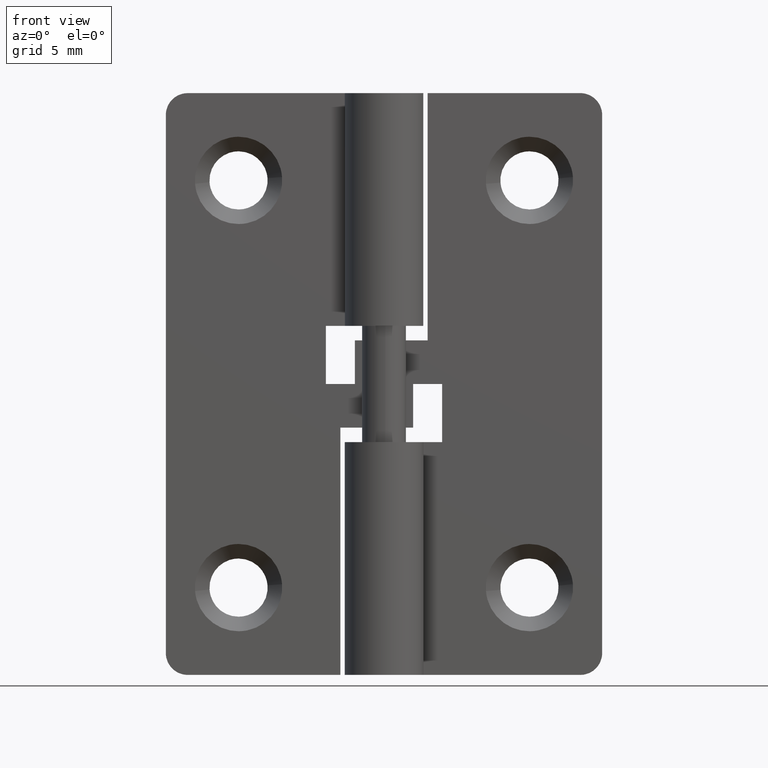
[diagram: clean part render]
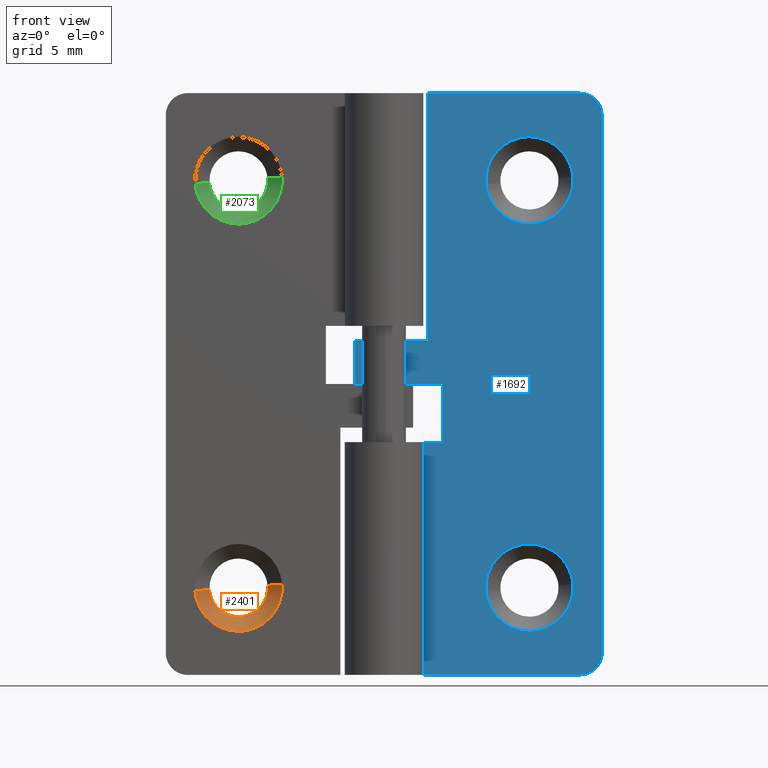
[diagram: same view with three faces highlighted in distinct colors, each labeled with its STEP entity id]
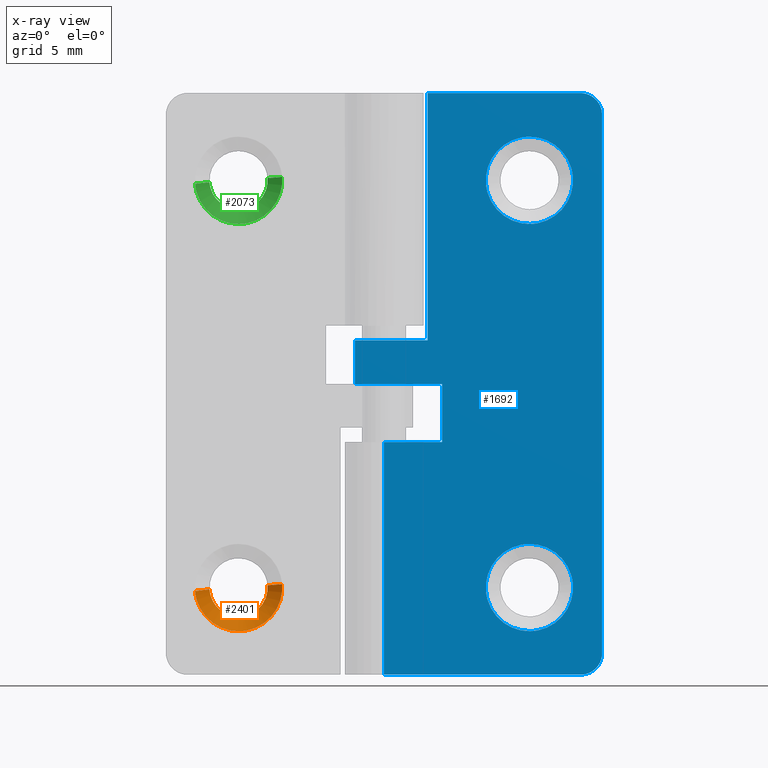
[diagram: x-ray of the same camera — body ghosted, the three highlighted faces saturated]
A machine part, front view with three faces highlighted in distinct colors.
The next image is the same camera in x-ray (body ghosted, the three faces saturated) — at least one of them is partly hidden behind the body in this view.
Their STEP definitions:

[orange] entity #2401 — the highlighted face is a freeform B-spline surface patch.
#2092=CARTESIAN_POINT('',(-8.013061613129381,2.500000000000000,5.771798670512149));
#2093=VERTEX_POINT('',#2092);
#2094=CARTESIAN_POINT('',(-10.0,2.500000000000000,3.999999999999901));
#2095=VERTEX_POINT('',#2094);
#2096=CARTESIAN_POINT('',(-8.013061613129381,2.500000000000000,5.771798670512149));
#2097=CARTESIAN_POINT('',(-8.216553988574878,2.500000000000000,3.999999999999901));
#2098=CARTESIAN_POINT('',(-10.0,2.500000000000000,3.999999999999901));
#2106=(BOUNDED_CURVE()B_SPLINE_CURVE(2,(#2096,#2097,#2098),.UNSPECIFIED.,.F.,.U.)B_SPLINE_CURVE_WITH_KNOTS((3,3),(0.269767755877807,0.500000000000000),.UNSPECIFIED.)CURVE()GEOMETRIC_REPRESENTATION_ITEM()RATIONAL_B_SPLINE_CURVE((0.957343736458301,0.730266147777625,1.0))REPRESENTATION_ITEM(''));
#2107=EDGE_CURVE('',#2093,#2095,#2106,.T.);
#2146=CARTESIAN_POINT('',(-11.996269607212870,2.499999999999739,5.877903090464221));
#2147=VERTEX_POINT('',#2146);
#2153=CARTESIAN_POINT('',(-10.0,2.500000000000000,3.999999999999901));
#2154=CARTESIAN_POINT('',(-11.881412293889690,2.500000000000000,3.999999999999901));
#2155=CARTESIAN_POINT('',(-11.996269607212861,2.499999999999739,5.877903090464221));
#2163=(BOUNDED_CURVE()B_SPLINE_CURVE(2,(#2153,#2154,#2155),.UNSPECIFIED.,.F.,.U.)B_SPLINE_CURVE_WITH_KNOTS((3,3),(0.500000000000000,0.739332976895577),.UNSPECIFIED.)CURVE()GEOMETRIC_REPRESENTATION_ITEM()RATIONAL_B_SPLINE_CURVE((1.0,0.719603976115395,0.976072073078677))REPRESENTATION_ITEM(''));
#2164=EDGE_CURVE('',#2095,#2147,#2163,.T.);
#2191=CARTESIAN_POINT('',(-8.006165332516021,2.499999999955601,6.156918191796287));
#2192=VERTEX_POINT('',#2191);
#2193=CARTESIAN_POINT('',(-8.006165332516021,2.499999999955600,6.156918191796287));
#2194=CARTESIAN_POINT('',(-8.0,2.500000000000000,6.078580214354018));
#2195=CARTESIAN_POINT('',(-8.0,2.500000000000000,5.999999999999901));
#2196=CARTESIAN_POINT('',(-8.0,2.500000000000000,5.885525529942215));
#2197=CARTESIAN_POINT('',(-8.013061613129381,2.500000000000000,5.771798670512149));
#2205=(BOUNDED_CURVE()B_SPLINE_CURVE(2,(#2193,#2194,#2195,#2196,#2197),.UNSPECIFIED.,.F.,.U.)B_SPLINE_CURVE_WITH_KNOTS((3,2,3),(0.236331300574782,0.250000000000000,0.269767755877807),.UNSPECIFIED.)CURVE()GEOMETRIC_REPRESENTATION_ITEM()RATIONAL_B_SPLINE_CURVE((0.969723356050805,0.983986122513417,1.0,0.976840633408922,0.957343736458301))REPRESENTATION_ITEM(''));
#2206=EDGE_CURVE('',#2192,#2093,#2205,.T.);
#2294=CARTESIAN_POINT('',(-7.009247998788410,1.499999999969401,6.235377287418338));
#2295=VERTEX_POINT('',#2294);
#2296=CARTESIAN_POINT('',(-8.006165332516021,2.499999999955601,6.156918191796287));
#2297=CARTESIAN_POINT('',(-7.009247998788410,1.499999999969401,6.235377287418338));
#2298=QUASI_UNIFORM_CURVE('',1,(#2296,#2297),.UNSPECIFIED.,.F.,.U.);
#2299=EDGE_CURVE('',#2192,#2295,#2298,.T.);
#2316=CARTESIAN_POINT('',(-12.990752001211590,1.499999999969401,5.764622712581463));
#2317=VERTEX_POINT('',#2316);
#2333=CARTESIAN_POINT('',(-11.996269607212870,2.499999999999739,5.877903090464221));
#2334=CARTESIAN_POINT('',(-12.990752001211590,1.499999999969401,5.764622712581463));
#2335=QUASI_UNIFORM_CURVE('',1,(#2333,#2334),.UNSPECIFIED.,.F.,.U.);
#2336=EDGE_CURVE('',#2147,#2317,#2335,.T.);
#2342=CARTESIAN_POINT('',(-11.973757666613114,2.525000000000000,5.906616696295422));
#2343=CARTESIAN_POINT('',(-11.971350495768311,2.525000000000000,5.876030690706423));
#2344=CARTESIAN_POINT('',(-11.813955020060432,2.525000000000000,3.876131551814479));
#2345=CARTESIAN_POINT('',(-9.845043285937505,2.525000000000000,4.031088265876974));
#2346=CARTESIAN_POINT('',(-7.876131551814579,2.525000000000000,4.186044979939469));
#2347=CARTESIAN_POINT('',(-8.032187497324086,2.525000000000001,6.168923773880560));
#2348=CARTESIAN_POINT('',(-8.033280287850221,2.525000000000000,6.182808994039424));
#2349=CARTESIAN_POINT('',(-13.023721792428509,1.474375000000000,5.856940324926045));
#2350=CARTESIAN_POINT('',(-13.020034098105821,1.474374999999999,5.810083725857584));
#2351=CARTESIAN_POINT('',(-12.778910206364731,1.474375000000000,2.746314190612043));
#2352=CARTESIAN_POINT('',(-9.762612198488437,1.474375000000000,2.983701992123606));
#2353=CARTESIAN_POINT('',(-6.746314190612143,1.474375000000000,3.221089793635169));
#2354=CARTESIAN_POINT('',(-6.985385972957563,1.474375000000000,6.258784806758214));
#2355=CARTESIAN_POINT('',(-6.987060086545228,1.474375000000000,6.280056436754754));
#2363=(BOUNDED_SURFACE()B_SPLINE_SURFACE(2,1,((#2342,#2349),(#2343,#2350),(#2344,#2351),(#2345,#2352),(#2346,#2353),(#2347,#2354),(#2348,#2355)),.UNSPECIFIED.,.F.,.F.,.U.)B_SPLINE_SURFACE_WITH_KNOTS((3,1,2,1,3),(2,2),(0.0,0.112308806205783,5.125328444826164,10.138348083446550,10.188787625630960),(0.0,1.0),.UNSPECIFIED.)GEOMETRIC_REPRESENTATION_ITEM()RATIONAL_B_SPLINE_SURFACE(((1.013123622136761,1.013123622136761),(1.006561811068381,1.006561811068381),(0.707106781186548,0.707106781186548),(1.0,1.0),(0.707106781186548,0.707106781186548),(1.002947006182073,1.002947006182073),(1.005894012364147,1.005894012364147)))REPRESENTATION_ITEM('')SURFACE());
#2364=ORIENTED_EDGE('',*,*,#2206,.T.);
#2365=ORIENTED_EDGE('',*,*,#2107,.T.);
#2366=ORIENTED_EDGE('',*,*,#2164,.T.);
#2367=ORIENTED_EDGE('',*,*,#2336,.T.);
#2368=CARTESIAN_POINT('',(-10.0,1.500000000000000,2.999999999999901));
#2369=VERTEX_POINT('',#2368);
#2370=CARTESIAN_POINT('',(-10.0,1.500000000000000,2.999999999999901));
#2371=CARTESIAN_POINT('',(-12.773171474542123,1.500000000000000,2.999999999999901));
#2372=CARTESIAN_POINT('',(-12.990752001211584,1.499999999969401,5.764622712581463));
#2380=(BOUNDED_CURVE()B_SPLINE_CURVE(2,(#2370,#2371,#2372),.UNSPECIFIED.,.F.,.U.)B_SPLINE_CURVE_WITH_KNOTS((3,3),(0.500000000000000,0.736331300606114),.UNSPECIFIED.)CURVE()GEOMETRIC_REPRESENTATION_ITEM()RATIONAL_B_SPLINE_CURVE((1.0,0.723120658636423,0.969723356116193))REPRESENTATION_ITEM(''));
#2381=EDGE_CURVE('',#2369,#2317,#2380,.T.);
#2382=ORIENTED_EDGE('',*,*,#2381,.F.);
#2383=CARTESIAN_POINT('',(-7.009247998788410,1.499999999969402,6.235377287418338));
#2384=CARTESIAN_POINT('',(-7.0,1.500000000000000,6.117870321256490));
#2385=CARTESIAN_POINT('',(-7.0,1.500000000000000,5.999999999999901));
#2386=CARTESIAN_POINT('',(-6.999999999999999,1.500000000000000,2.999999999999900));
#2387=CARTESIAN_POINT('',(-10.0,1.500000000000000,2.999999999999901));
#2395=(BOUNDED_CURVE()B_SPLINE_CURVE(2,(#2383,#2384,#2385,#2386,#2387),.UNSPECIFIED.,.F.,.U.)B_SPLINE_CURVE_WITH_KNOTS((3,2,3),(0.236331300606114,0.250000000000000,0.500000000000000),.UNSPECIFIED.)CURVE()GEOMETRIC_REPRESENTATION_ITEM()RATIONAL_B_SPLINE_CURVE((0.969723356116193,0.983986122550125,1.0,0.707106781186548,1.0))REPRESENTATION_ITEM(''));
#2396=EDGE_CURVE('',#2295,#2369,#2395,.T.);
#2397=ORIENTED_EDGE('',*,*,#2396,.F.);
#2398=ORIENTED_EDGE('',*,*,#2299,.F.);
#2399=EDGE_LOOP('',(#2364,#2365,#2366,#2367,#2382,#2397,#2398));
#2400=FACE_OUTER_BOUND('',#2399,.T.);
#2401=ADVANCED_FACE('',(#2400),#2363,.F.);

[blue] entity #1692 — the highlighted face is a freeform B-spline surface patch.
#669=CARTESIAN_POINT('',(12.990752001211590,1.499999999969401,34.235377287418430));
#670=VERTEX_POINT('',#669);
#676=CARTESIAN_POINT('',(10.0,1.500000000000000,37.000000000000007));
#677=VERTEX_POINT('',#676);
#678=CARTESIAN_POINT('',(10.0,1.500000000000000,37.000000000000007));
#679=CARTESIAN_POINT('',(12.773171474542121,1.500000000000000,37.0));
#680=CARTESIAN_POINT('',(12.990752001211588,1.499999999969401,34.235377287418437));
#688=(BOUNDED_CURVE()B_SPLINE_CURVE(2,(#678,#679,#680),.UNSPECIFIED.,.F.,.U.)B_SPLINE_CURVE_WITH_KNOTS((3,3),(0.0,0.236331300606114),.UNSPECIFIED.)CURVE()GEOMETRIC_REPRESENTATION_ITEM()RATIONAL_B_SPLINE_CURVE((1.0,0.723120658636423,0.969723356116193))REPRESENTATION_ITEM(''));
#689=EDGE_CURVE('',#677,#670,#688,.T.);
#691=CARTESIAN_POINT('',(7.009247998788410,1.499999999969401,33.764622712581570));
#692=VERTEX_POINT('',#691);
#693=CARTESIAN_POINT('',(7.009247998788410,1.499999999969402,33.764622712581570));
#694=CARTESIAN_POINT('',(7.000000000000001,1.500000000000000,33.882129678743411));
#695=CARTESIAN_POINT('',(7.0,1.500000000000000,34.0));
#696=CARTESIAN_POINT('',(6.999999999999999,1.500000000000000,37.0));
#697=CARTESIAN_POINT('',(10.0,1.500000000000000,37.000000000000007));
#705=(BOUNDED_CURVE()B_SPLINE_CURVE(2,(#693,#694,#695,#696,#697),.UNSPECIFIED.,.F.,.U.)B_SPLINE_CURVE_WITH_KNOTS((3,2,3),(0.736331300606114,0.750000000000000,1.0),.UNSPECIFIED.)CURVE()GEOMETRIC_REPRESENTATION_ITEM()RATIONAL_B_SPLINE_CURVE((0.969723356116193,0.983986122550125,1.0,0.707106781186548,1.0))REPRESENTATION_ITEM(''));
#706=EDGE_CURVE('',#692,#677,#705,.T.);
#739=CARTESIAN_POINT('',(10.0,1.500000000000000,31.0));
#740=VERTEX_POINT('',#739);
#741=CARTESIAN_POINT('',(10.0,1.500000000000000,31.0));
#742=CARTESIAN_POINT('',(7.226828525457881,1.500000000000000,31.0));
#743=CARTESIAN_POINT('',(7.009247998788410,1.499999999969401,33.764622712581577));
#751=(BOUNDED_CURVE()B_SPLINE_CURVE(2,(#741,#742,#743),.UNSPECIFIED.,.F.,.U.)B_SPLINE_CURVE_WITH_KNOTS((3,3),(0.500000000000000,0.736331300606114),.UNSPECIFIED.)CURVE()GEOMETRIC_REPRESENTATION_ITEM()RATIONAL_B_SPLINE_CURVE((1.0,0.723120658636423,0.969723356116193))REPRESENTATION_ITEM(''));
#752=EDGE_CURVE('',#740,#692,#751,.T.);
#754=CARTESIAN_POINT('',(12.990752001211591,1.499999999969401,34.235377287418430));
#755=CARTESIAN_POINT('',(12.999999999999998,1.500000000000000,34.117870321256596));
#756=CARTESIAN_POINT('',(13.0,1.500000000000000,34.0));
#757=CARTESIAN_POINT('',(13.000000000000004,1.500000000000000,31.000000000000007));
#758=CARTESIAN_POINT('',(10.0,1.500000000000000,31.0));
#766=(BOUNDED_CURVE()B_SPLINE_CURVE(2,(#754,#755,#756,#757,#758),.UNSPECIFIED.,.F.,.U.)B_SPLINE_CURVE_WITH_KNOTS((3,2,3),(0.236331300606114,0.250000000000000,0.500000000000000),.UNSPECIFIED.)CURVE()GEOMETRIC_REPRESENTATION_ITEM()RATIONAL_B_SPLINE_CURVE((0.969723356116193,0.983986122550125,1.0,0.707106781186548,1.0))REPRESENTATION_ITEM(''));
#767=EDGE_CURVE('',#670,#740,#766,.T.);
#1001=CARTESIAN_POINT('',(12.990752001211590,1.499999999969400,6.235377287418338));
#1002=VERTEX_POINT('',#1001);
#1008=CARTESIAN_POINT('',(10.0,1.500000000000000,8.999999999999901));
#1009=VERTEX_POINT('',#1008);
#1010=CARTESIAN_POINT('',(10.0,1.500000000000000,8.999999999999901));
#1011=CARTESIAN_POINT('',(12.773171474542119,1.500000000000000,8.999999999999901));
#1012=CARTESIAN_POINT('',(12.990752001211590,1.499999999969401,6.235377287418338));
#1020=(BOUNDED_CURVE()B_SPLINE_CURVE(2,(#1010,#1011,#1012),.UNSPECIFIED.,.F.,.U.)B_SPLINE_CURVE_WITH_KNOTS((3,3),(0.0,0.236331300606114),.UNSPECIFIED.)CURVE()GEOMETRIC_REPRESENTATION_ITEM()RATIONAL_B_SPLINE_CURVE((1.0,0.723120658636423,0.969723356116193))REPRESENTATION_ITEM(''));
#1021=EDGE_CURVE('',#1009,#1002,#1020,.T.);
#1023=CARTESIAN_POINT('',(7.009247998788410,1.499999999969401,5.764622712581463));
#1024=VERTEX_POINT('',#1023);
#1025=CARTESIAN_POINT('',(7.009247998788410,1.499999999969401,5.764622712581463));
#1026=CARTESIAN_POINT('',(6.999999999999999,1.500000000000000,5.882129678743313));
#1027=CARTESIAN_POINT('',(7.0,1.500000000000000,5.999999999999901));
#1028=CARTESIAN_POINT('',(6.999999999999999,1.500000000000000,8.999999999999901));
#1029=CARTESIAN_POINT('',(10.0,1.500000000000000,8.999999999999901));
#1037=(BOUNDED_CURVE()B_SPLINE_CURVE(2,(#1025,#1026,#1027,#1028,#1029),.UNSPECIFIED.,.F.,.U.)B_SPLINE_CURVE_WITH_KNOTS((3,2,3),(0.736331300606114,0.750000000000000,1.0),.UNSPECIFIED.)CURVE()GEOMETRIC_REPRESENTATION_ITEM()RATIONAL_B_SPLINE_CURVE((0.969723356116193,0.983986122550125,1.0,0.707106781186548,1.0))REPRESENTATION_ITEM(''));
#1038=EDGE_CURVE('',#1024,#1009,#1037,.T.);
#1071=CARTESIAN_POINT('',(10.0,1.500000000000000,2.999999999999901));
#1072=VERTEX_POINT('',#1071);
#1073=CARTESIAN_POINT('',(10.0,1.500000000000000,2.999999999999901));
#1074=CARTESIAN_POINT('',(7.226828525457881,1.500000000000000,2.999999999999901));
#1075=CARTESIAN_POINT('',(7.009247998788410,1.499999999969401,5.764622712581463));
#1083=(BOUNDED_CURVE()B_SPLINE_CURVE(2,(#1073,#1074,#1075),.UNSPECIFIED.,.F.,.U.)B_SPLINE_CURVE_WITH_KNOTS((3,3),(0.500000000000000,0.736331300606114),.UNSPECIFIED.)CURVE()GEOMETRIC_REPRESENTATION_ITEM()RATIONAL_B_SPLINE_CURVE((1.0,0.723120658636423,0.969723356116193))REPRESENTATION_ITEM(''));
#1084=EDGE_CURVE('',#1072,#1024,#1083,.T.);
#1086=CARTESIAN_POINT('',(12.990752001211593,1.499999999969401,6.235377287418338));
#1087=CARTESIAN_POINT('',(12.999999999999998,1.500000000000000,6.117870321256489));
#1088=CARTESIAN_POINT('',(13.0,1.500000000000000,5.999999999999901));
#1089=CARTESIAN_POINT('',(13.000000000000004,1.500000000000000,2.999999999999900));
#1090=CARTESIAN_POINT('',(10.0,1.500000000000000,2.999999999999901));
#1098=(BOUNDED_CURVE()B_SPLINE_CURVE(2,(#1086,#1087,#1088,#1089,#1090),.UNSPECIFIED.,.F.,.U.)B_SPLINE_CURVE_WITH_KNOTS((3,2,3),(0.236331300606114,0.250000000000000,0.500000000000000),.UNSPECIFIED.)CURVE()GEOMETRIC_REPRESENTATION_ITEM()RATIONAL_B_SPLINE_CURVE((0.969723356116193,0.983986122550125,1.0,0.707106781186548,1.0))REPRESENTATION_ITEM(''));
#1099=EDGE_CURVE('',#1002,#1072,#1098,.T.);
#1119=CARTESIAN_POINT('',(-2.0,1.499999999999946,23.0));
#1120=VERTEX_POINT('',#1119);
#1126=CARTESIAN_POINT('',(3.0,1.499999999999946,23.0));
#1127=VERTEX_POINT('',#1126);
#1128=CARTESIAN_POINT('',(3.0,1.499999999999946,23.0));
#1129=CARTESIAN_POINT('',(-2.0,1.499999999999946,23.0));
#1130=QUASI_UNIFORM_CURVE('',1,(#1128,#1129),.UNSPECIFIED.,.F.,.U.);
#1131=EDGE_CURVE('',#1127,#1120,#1130,.T.);
#1153=CARTESIAN_POINT('',(-2.0,1.499999999999946,20.0));
#1154=VERTEX_POINT('',#1153);
#1160=CARTESIAN_POINT('',(-2.0,1.499999999999946,23.0));
#1161=CARTESIAN_POINT('',(-2.0,1.499999999999946,20.0));
#1162=QUASI_UNIFORM_CURVE('',1,(#1160,#1161),.UNSPECIFIED.,.F.,.U.);
#1163=EDGE_CURVE('',#1120,#1154,#1162,.T.);
#1174=CARTESIAN_POINT('',(-2.755364E-016,1.500000000000000,16.0));
#1175=VERTEX_POINT('',#1174);
#1176=CARTESIAN_POINT('',(4.0,1.500000000000055,16.0));
#1177=VERTEX_POINT('',#1176);
#1178=CARTESIAN_POINT('',(-2.755364E-016,1.500000000000000,16.0));
#1179=CARTESIAN_POINT('',(4.0,1.500000000000055,16.0));
#1180=QUASI_UNIFORM_CURVE('',1,(#1178,#1179),.UNSPECIFIED.,.F.,.U.);
#1181=EDGE_CURVE('',#1175,#1177,#1180,.T.);
#1252=CARTESIAN_POINT('',(4.0,1.500000000000055,20.0));
#1253=VERTEX_POINT('',#1252);
#1254=CARTESIAN_POINT('',(4.0,1.500000000000055,20.0));
#1255=CARTESIAN_POINT('',(-2.0,1.499999999999946,20.0));
#1256=QUASI_UNIFORM_CURVE('',1,(#1254,#1255),.UNSPECIFIED.,.F.,.U.);
#1257=EDGE_CURVE('',#1253,#1154,#1256,.T.);
#1280=CARTESIAN_POINT('',(4.0,1.500000000000055,16.0));
#1281=CARTESIAN_POINT('',(4.0,1.500000000000055,20.0));
#1282=QUASI_UNIFORM_CURVE('',1,(#1280,#1281),.UNSPECIFIED.,.F.,.U.);
#1283=EDGE_CURVE('',#1177,#1253,#1282,.T.);
#1309=CARTESIAN_POINT('',(15.0,1.500000000000085,38.500000000000000));
#1310=VERTEX_POINT('',#1309);
#1311=CARTESIAN_POINT('',(13.500000000000000,1.500000000000085,40.0));
#1312=VERTEX_POINT('',#1311);
#1313=CARTESIAN_POINT('',(15.0,1.500000000000085,38.500000000000000));
#1314=CARTESIAN_POINT('',(14.999999999999995,1.500000000000086,39.999999999999993));
#1315=CARTESIAN_POINT('',(13.500000000000000,1.500000000000085,40.0));
#1323=(BOUNDED_CURVE()B_SPLINE_CURVE(2,(#1313,#1314,#1315),.UNSPECIFIED.,.F.,.U.)CURVE()GEOMETRIC_REPRESENTATION_ITEM()QUASI_UNIFORM_CURVE()RATIONAL_B_SPLINE_CURVE((1.0,0.707106781186548,1.0))REPRESENTATION_ITEM(''));
#1324=EDGE_CURVE('',#1310,#1312,#1323,.T.);
#1370=CARTESIAN_POINT('',(13.500000000000000,1.500000000000085,0.0));
#1371=VERTEX_POINT('',#1370);
#1372=CARTESIAN_POINT('',(15.0,1.500000000000085,1.499999999999946));
#1373=VERTEX_POINT('',#1372);
#1374=CARTESIAN_POINT('',(13.500000000000000,1.500000000000085,0.0));
#1375=CARTESIAN_POINT('',(14.999999999999995,1.500000000000086,-5.399327E-014));
#1376=CARTESIAN_POINT('',(15.0,1.500000000000085,1.499999999999946));
#1384=(BOUNDED_CURVE()B_SPLINE_CURVE(2,(#1374,#1375,#1376),.UNSPECIFIED.,.F.,.U.)CURVE()GEOMETRIC_REPRESENTATION_ITEM()QUASI_UNIFORM_CURVE()RATIONAL_B_SPLINE_CURVE((1.0,0.707106781186548,1.0))REPRESENTATION_ITEM(''));
#1385=EDGE_CURVE('',#1371,#1373,#1384,.T.);
#1430=CARTESIAN_POINT('',(-2.755364E-016,1.500000000000000,0.0));
#1431=VERTEX_POINT('',#1430);
#1432=CARTESIAN_POINT('',(-2.755364E-016,1.500000000000000,0.0));
#1433=CARTESIAN_POINT('',(13.500000000000000,1.500000000000085,0.0));
#1434=QUASI_UNIFORM_CURVE('',1,(#1432,#1433),.UNSPECIFIED.,.F.,.U.);
#1435=EDGE_CURVE('',#1431,#1371,#1434,.T.);
#1492=CARTESIAN_POINT('',(15.0,1.500000000000085,38.500000000000000));
#1493=CARTESIAN_POINT('',(15.0,1.500000000000085,1.499999999999946));
#1494=QUASI_UNIFORM_CURVE('',1,(#1492,#1493),.UNSPECIFIED.,.F.,.U.);
#1495=EDGE_CURVE('',#1310,#1373,#1494,.T.);
#1559=CARTESIAN_POINT('',(3.0,1.500000000000085,40.0));
#1560=VERTEX_POINT('',#1559);
#1566=CARTESIAN_POINT('',(3.0,1.500000000000085,40.0));
#1567=CARTESIAN_POINT('',(13.500000000000000,1.500000000000085,40.0));
#1568=QUASI_UNIFORM_CURVE('',1,(#1566,#1567),.UNSPECIFIED.,.F.,.U.);
#1569=EDGE_CURVE('',#1560,#1312,#1568,.T.);
#1597=CARTESIAN_POINT('',(-2.755364E-016,1.500000000000000,16.0));
#1598=CARTESIAN_POINT('',(-2.755364E-016,1.500000000000000,0.0));
#1599=QUASI_UNIFORM_CURVE('',1,(#1597,#1598),.UNSPECIFIED.,.F.,.U.);
#1600=EDGE_CURVE('',#1175,#1431,#1599,.T.);
#1657=CARTESIAN_POINT('',(-2.849149967050703,1.500000000000085,-1.997999922472239));
#1658=CARTESIAN_POINT('',(-2.849149967050703,1.500000000000085,41.998000995355838));
#1659=CARTESIAN_POINT('',(15.849150423026240,1.500000000000085,-1.997999922472239));
#1660=CARTESIAN_POINT('',(15.849150423026240,1.500000000000085,41.998000995355838));
#1661=B_SPLINE_SURFACE_WITH_KNOTS('',1,1,((#1657,#1659),(#1658,#1660)),.UNSPECIFIED.,.F.,.F.,.U.,(2,2),(2,2),(0.0,43.996000917828077),(0.0,18.698300390076941),.UNSPECIFIED.);
#1662=CARTESIAN_POINT('',(3.0,1.499999999999946,23.0));
#1663=CARTESIAN_POINT('',(3.0,1.500000000000085,40.0));
#1664=QUASI_UNIFORM_CURVE('',1,(#1662,#1663),.UNSPECIFIED.,.F.,.U.);
#1665=EDGE_CURVE('',#1127,#1560,#1664,.T.);
#1666=ORIENTED_EDGE('',*,*,#1665,.F.);
#1667=ORIENTED_EDGE('',*,*,#1131,.T.);
#1668=ORIENTED_EDGE('',*,*,#1163,.T.);
#1669=ORIENTED_EDGE('',*,*,#1257,.F.);
#1670=ORIENTED_EDGE('',*,*,#1283,.F.);
#1671=ORIENTED_EDGE('',*,*,#1181,.F.);
#1672=ORIENTED_EDGE('',*,*,#1600,.T.);
#1673=ORIENTED_EDGE('',*,*,#1435,.T.);
#1674=ORIENTED_EDGE('',*,*,#1385,.T.);
#1675=ORIENTED_EDGE('',*,*,#1495,.F.);
#1676=ORIENTED_EDGE('',*,*,#1324,.T.);
#1677=ORIENTED_EDGE('',*,*,#1569,.F.);
#1678=EDGE_LOOP('',(#1666,#1667,#1668,#1669,#1670,#1671,#1672,#1673,#1674,#1675,#1676,#1677));
#1679=FACE_OUTER_BOUND('',#1678,.T.);
#1680=ORIENTED_EDGE('',*,*,#1084,.T.);
#1681=ORIENTED_EDGE('',*,*,#1038,.T.);
#1682=ORIENTED_EDGE('',*,*,#1021,.T.);
#1683=ORIENTED_EDGE('',*,*,#1099,.T.);
#1684=EDGE_LOOP('',(#1680,#1681,#1682,#1683));
#1685=FACE_BOUND('',#1684,.T.);
#1686=ORIENTED_EDGE('',*,*,#752,.T.);
#1687=ORIENTED_EDGE('',*,*,#706,.T.);
#1688=ORIENTED_EDGE('',*,*,#689,.T.);
#1689=ORIENTED_EDGE('',*,*,#767,.T.);
#1690=EDGE_LOOP('',(#1686,#1687,#1688,#1689));
#1691=FACE_BOUND('',#1690,.T.);
#1692=ADVANCED_FACE('',(#1679,#1685,#1691),#1661,.F.);

[green] entity #2073 — the highlighted face is a freeform B-spline surface patch.
#1764=CARTESIAN_POINT('',(-8.013061613129381,2.500000000000000,33.771798670512240));
#1765=VERTEX_POINT('',#1764);
#1766=CARTESIAN_POINT('',(-10.0,2.500000000000000,32.0));
#1767=VERTEX_POINT('',#1766);
#1768=CARTESIAN_POINT('',(-8.013061613129381,2.500000000000000,33.771798670512240));
#1769=CARTESIAN_POINT('',(-8.216553988574878,2.500000000000000,32.000000000000007));
#1770=CARTESIAN_POINT('',(-10.0,2.500000000000000,32.0));
#1778=(BOUNDED_CURVE()B_SPLINE_CURVE(2,(#1768,#1769,#1770),.UNSPECIFIED.,.F.,.U.)B_SPLINE_CURVE_WITH_KNOTS((3,3),(0.269767755877807,0.500000000000000),.UNSPECIFIED.)CURVE()GEOMETRIC_REPRESENTATION_ITEM()RATIONAL_B_SPLINE_CURVE((0.957343736458301,0.730266147777626,1.0))REPRESENTATION_ITEM(''));
#1779=EDGE_CURVE('',#1765,#1767,#1778,.T.);
#1818=CARTESIAN_POINT('',(-11.996269607212859,2.499999999999739,33.877903090464329));
#1819=VERTEX_POINT('',#1818);
#1825=CARTESIAN_POINT('',(-10.0,2.500000000000000,32.0));
#1826=CARTESIAN_POINT('',(-11.881412293889698,2.500000000000000,32.000000000000007));
#1827=CARTESIAN_POINT('',(-11.996269607212861,2.499999999999739,33.877903090464322));
#1835=(BOUNDED_CURVE()B_SPLINE_CURVE(2,(#1825,#1826,#1827),.UNSPECIFIED.,.F.,.U.)B_SPLINE_CURVE_WITH_KNOTS((3,3),(0.500000000000000,0.739332976895578),.UNSPECIFIED.)CURVE()GEOMETRIC_REPRESENTATION_ITEM()RATIONAL_B_SPLINE_CURVE((1.0,0.719603976115394,0.976072073078678))REPRESENTATION_ITEM(''));
#1836=EDGE_CURVE('',#1767,#1819,#1835,.T.);
#1863=CARTESIAN_POINT('',(-8.006165332516023,2.499999999955600,34.156918191796393));
#1864=VERTEX_POINT('',#1863);
#1865=CARTESIAN_POINT('',(-8.006165332516023,2.499999999955600,34.156918191796400));
#1866=CARTESIAN_POINT('',(-8.0,2.500000000000000,34.078580214354119));
#1867=CARTESIAN_POINT('',(-8.0,2.500000000000000,34.0));
#1868=CARTESIAN_POINT('',(-8.000000000000002,2.500000000000001,33.885525529942321));
#1869=CARTESIAN_POINT('',(-8.013061613129381,2.500000000000000,33.771798670512247));
#1877=(BOUNDED_CURVE()B_SPLINE_CURVE(2,(#1865,#1866,#1867,#1868,#1869),.UNSPECIFIED.,.F.,.U.)B_SPLINE_CURVE_WITH_KNOTS((3,2,3),(0.236331300574781,0.250000000000000,0.269767755877807),.UNSPECIFIED.)CURVE()GEOMETRIC_REPRESENTATION_ITEM()RATIONAL_B_SPLINE_CURVE((0.969723356050804,0.983986122513416,1.0,0.976840633408922,0.957343736458300))REPRESENTATION_ITEM(''));
#1878=EDGE_CURVE('',#1864,#1765,#1877,.T.);
#1966=CARTESIAN_POINT('',(-7.009247998788410,1.499999999969401,34.235377287418430));
#1967=VERTEX_POINT('',#1966);
#1968=CARTESIAN_POINT('',(-8.006165332516023,2.499999999955600,34.156918191796393));
#1969=CARTESIAN_POINT('',(-7.009247998788410,1.499999999969401,34.235377287418430));
#1970=QUASI_UNIFORM_CURVE('',1,(#1968,#1969),.UNSPECIFIED.,.F.,.U.);
#1971=EDGE_CURVE('',#1864,#1967,#1970,.T.);
#1988=CARTESIAN_POINT('',(-12.990752001211590,1.499999999969401,33.764622712581570));
#1989=VERTEX_POINT('',#1988);
#2005=CARTESIAN_POINT('',(-11.996269607212859,2.499999999999739,33.877903090464329));
#2006=CARTESIAN_POINT('',(-12.990752001211590,1.499999999969401,33.764622712581570));
#2007=QUASI_UNIFORM_CURVE('',1,(#2005,#2006),.UNSPECIFIED.,.F.,.U.);
#2008=EDGE_CURVE('',#1819,#1989,#2007,.T.);
#2014=CARTESIAN_POINT('',(-11.973757666613114,2.525000000000000,33.906616696295515));
#2015=CARTESIAN_POINT('',(-11.971350495768311,2.525000000000000,33.876030690706507));
#2016=CARTESIAN_POINT('',(-11.813955020060432,2.525000000000000,31.876131551814581));
#2017=CARTESIAN_POINT('',(-9.845043285937505,2.525000000000000,32.031088265877067));
#2018=CARTESIAN_POINT('',(-7.876131551814579,2.525000000000000,32.186044979939574));
#2019=CARTESIAN_POINT('',(-8.032187497324083,2.525000000000000,34.168923773880650));
#2020=CARTESIAN_POINT('',(-8.033280287850223,2.525000000000000,34.182808994039519));
#2021=CARTESIAN_POINT('',(-13.023721792428509,1.474375000000000,33.856940324926143));
#2022=CARTESIAN_POINT('',(-13.020034098105821,1.474374999999999,33.810083725857666));
#2023=CARTESIAN_POINT('',(-12.778910206364731,1.474375000000000,30.746314190612139));
#2024=CARTESIAN_POINT('',(-9.762612198488437,1.474375000000000,30.983701992123709));
#2025=CARTESIAN_POINT('',(-6.746314190612143,1.474375000000000,31.221089793635258));
#2026=CARTESIAN_POINT('',(-6.985385972957560,1.474375000000000,34.258784806758300));
#2027=CARTESIAN_POINT('',(-6.987060086545228,1.474375000000000,34.280056436754833));
#2035=(BOUNDED_SURFACE()B_SPLINE_SURFACE(2,1,((#2014,#2021),(#2015,#2022),(#2016,#2023),(#2017,#2024),(#2018,#2025),(#2019,#2026),(#2020,#2027)),.UNSPECIFIED.,.F.,.F.,.U.)B_SPLINE_SURFACE_WITH_KNOTS((3,1,2,1,3),(2,2),(0.0,0.112308806205783,5.125328444826173,10.138348083446560,10.188787625630949),(0.0,1.0),.UNSPECIFIED.)GEOMETRIC_REPRESENTATION_ITEM()RATIONAL_B_SPLINE_SURFACE(((1.013123622136761,1.013123622136761),(1.006561811068381,1.006561811068381),(0.707106781186548,0.707106781186548),(1.0,1.0),(0.707106781186548,0.707106781186548),(1.002947006182072,1.002947006182072),(1.005894012364144,1.005894012364144)))REPRESENTATION_ITEM('')SURFACE());
#2036=ORIENTED_EDGE('',*,*,#1878,.T.);
#2037=ORIENTED_EDGE('',*,*,#1779,.T.);
#2038=ORIENTED_EDGE('',*,*,#1836,.T.);
#2039=ORIENTED_EDGE('',*,*,#2008,.T.);
#2040=CARTESIAN_POINT('',(-10.0,1.500000000000000,31.0));
#2041=VERTEX_POINT('',#2040);
#2042=CARTESIAN_POINT('',(-10.0,1.500000000000000,31.0));
#2043=CARTESIAN_POINT('',(-12.773171474542123,1.500000000000000,31.0));
#2044=CARTESIAN_POINT('',(-12.990752001211597,1.499999999969401,33.764622712581577));
#2052=(BOUNDED_CURVE()B_SPLINE_CURVE(2,(#2042,#2043,#2044),.UNSPECIFIED.,.F.,.U.)B_SPLINE_CURVE_WITH_KNOTS((3,3),(0.500000000000000,0.736331300606114),.UNSPECIFIED.)CURVE()GEOMETRIC_REPRESENTATION_ITEM()RATIONAL_B_SPLINE_CURVE((1.0,0.723120658636423,0.969723356116193))REPRESENTATION_ITEM(''));
#2053=EDGE_CURVE('',#2041,#1989,#2052,.T.);
#2054=ORIENTED_EDGE('',*,*,#2053,.F.);
#2055=CARTESIAN_POINT('',(-7.009247998788410,1.499999999969401,34.235377287418430));
#2056=CARTESIAN_POINT('',(-7.0,1.500000000000000,34.117870321256582));
#2057=CARTESIAN_POINT('',(-7.0,1.500000000000000,34.0));
#2058=CARTESIAN_POINT('',(-6.999999999999999,1.500000000000000,31.000000000000007));
#2059=CARTESIAN_POINT('',(-10.0,1.500000000000000,31.0));
#2067=(BOUNDED_CURVE()B_SPLINE_CURVE(2,(#2055,#2056,#2057,#2058,#2059),.UNSPECIFIED.,.F.,.U.)B_SPLINE_CURVE_WITH_KNOTS((3,2,3),(0.236331300606114,0.250000000000000,0.500000000000000),.UNSPECIFIED.)CURVE()GEOMETRIC_REPRESENTATION_ITEM()RATIONAL_B_SPLINE_CURVE((0.969723356116194,0.983986122550125,1.0,0.707106781186548,1.0))REPRESENTATION_ITEM(''));
#2068=EDGE_CURVE('',#1967,#2041,#2067,.T.);
#2069=ORIENTED_EDGE('',*,*,#2068,.F.);
#2070=ORIENTED_EDGE('',*,*,#1971,.F.);
#2071=EDGE_LOOP('',(#2036,#2037,#2038,#2039,#2054,#2069,#2070));
#2072=FACE_OUTER_BOUND('',#2071,.T.);
#2073=ADVANCED_FACE('',(#2072),#2035,.F.);